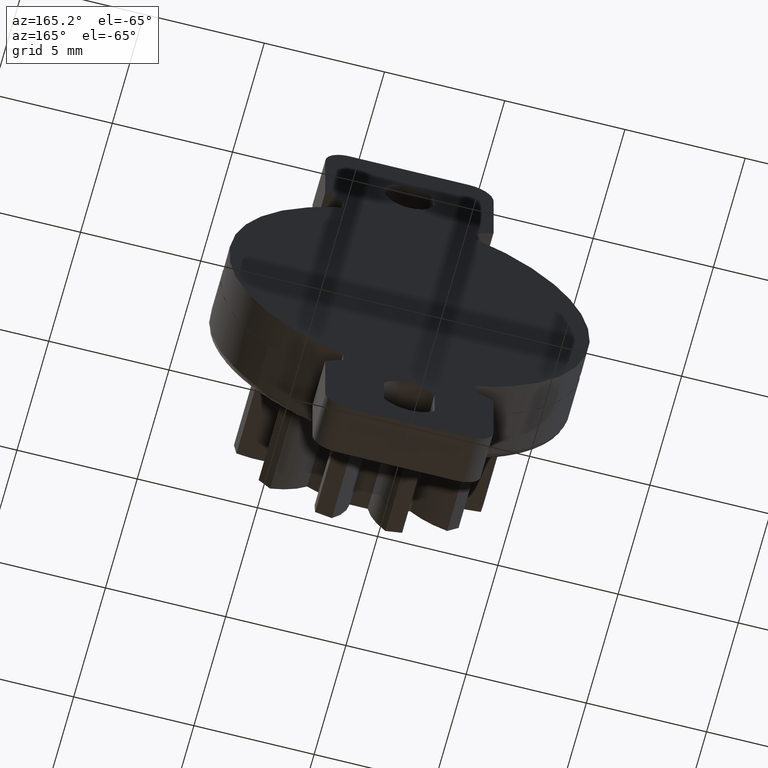
[diagram: clean part render]
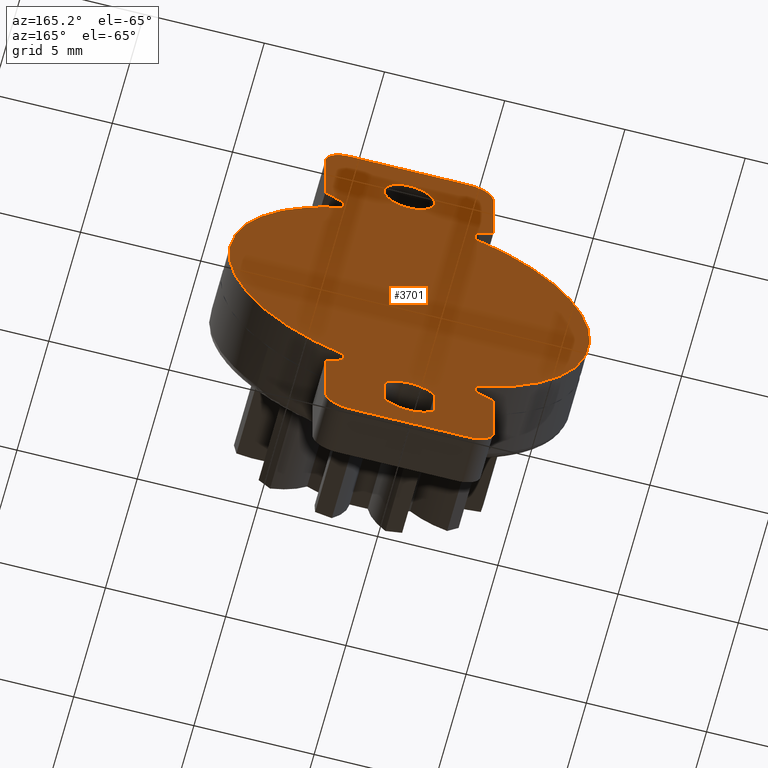
[diagram: same view with one face highlighted and labeled with its STEP entity id]
A machine part, auxiliary view. The second image highlights one B-rep face of the part: STEP entity #3701.
In plain terms, the highlighted face is a freeform B-spline surface patch.
Its self-contained STEP definition (entity closure, byte-faithful):
#2835=CARTESIAN_POINT('',(0.0,0.0,8.449999999999999));
#2836=VERTEX_POINT('',#2835);
#2837=CARTESIAN_POINT('',(1.046763200416690,1.040834E-016,9.417617949446449));
#2838=VERTEX_POINT('',#2837);
#2839=CARTESIAN_POINT('',(0.0,0.0,8.449999999999999));
#2840=CARTESIAN_POINT('',(0.970610016204549,0.0,8.449999999999998));
#2841=CARTESIAN_POINT('',(1.046763200416690,0.0,9.417617949446445));
#2849=(BOUNDED_CURVE()B_SPLINE_CURVE(2,(#2839,#2840,#2841),.UNSPECIFIED.,.F.,.U.)B_SPLINE_CURVE_WITH_KNOTS((3,3),(0.0,0.236331300626328),.UNSPECIFIED.)CURVE()GEOMETRIC_REPRESENTATION_ITEM()RATIONAL_B_SPLINE_CURVE((1.0,0.723120658612740,0.969723356158378))REPRESENTATION_ITEM(''));
#2850=EDGE_CURVE('',#2836,#2838,#2849,.T.);
#2852=CARTESIAN_POINT('',(-1.046763200416690,1.040834E-016,9.582382050553552));
#2853=VERTEX_POINT('',#2852);
#2854=CARTESIAN_POINT('',(-1.046763200416690,0.0,9.582382050553550));
#2855=CARTESIAN_POINT('',(-1.050000000000000,0.0,9.541254612377800));
#2856=CARTESIAN_POINT('',(-1.050000000000000,0.0,9.500000000000000));
#2857=CARTESIAN_POINT('',(-1.050000000000000,0.0,8.449999999999999));
#2858=CARTESIAN_POINT('',(0.0,0.0,8.449999999999999));
#2866=(BOUNDED_CURVE()B_SPLINE_CURVE(2,(#2854,#2855,#2856,#2857,#2858),.UNSPECIFIED.,.F.,.U.)B_SPLINE_CURVE_WITH_KNOTS((3,2,3),(0.736331300626329,0.750000000000000,1.0),.UNSPECIFIED.)CURVE()GEOMETRIC_REPRESENTATION_ITEM()RATIONAL_B_SPLINE_CURVE((0.969723356158379,0.983986122573808,1.0,0.707106781186548,1.0))REPRESENTATION_ITEM(''));
#2867=EDGE_CURVE('',#2853,#2836,#2866,.T.);
#2934=CARTESIAN_POINT('',(0.0,0.0,10.550000000000001));
#2935=VERTEX_POINT('',#2934);
#2936=CARTESIAN_POINT('',(1.046763200416690,0.0,9.417617949446447));
#2937=CARTESIAN_POINT('',(1.050000000000000,0.0,9.458745387622198));
#2938=CARTESIAN_POINT('',(1.050000000000000,0.0,9.500000000000000));
#2939=CARTESIAN_POINT('',(1.050000000000000,0.0,10.550000000000001));
#2940=CARTESIAN_POINT('',(0.0,0.0,10.550000000000001));
#2948=(BOUNDED_CURVE()B_SPLINE_CURVE(2,(#2936,#2937,#2938,#2939,#2940),.UNSPECIFIED.,.F.,.U.)B_SPLINE_CURVE_WITH_KNOTS((3,2,3),(0.236331300626329,0.250000000000000,0.500000000000000),.UNSPECIFIED.)CURVE()GEOMETRIC_REPRESENTATION_ITEM()RATIONAL_B_SPLINE_CURVE((0.969723356158380,0.983986122573808,1.0,0.707106781186548,1.0))REPRESENTATION_ITEM(''));
#2949=EDGE_CURVE('',#2838,#2935,#2948,.T.);
#2983=CARTESIAN_POINT('',(0.0,0.0,10.550000000000001));
#2984=CARTESIAN_POINT('',(-0.970610016204550,0.0,10.550000000000001));
#2985=CARTESIAN_POINT('',(-1.046763200416691,0.0,9.582382050553553));
#2993=(BOUNDED_CURVE()B_SPLINE_CURVE(2,(#2983,#2984,#2985),.UNSPECIFIED.,.F.,.U.)B_SPLINE_CURVE_WITH_KNOTS((3,3),(0.500000000000000,0.736331300626328),.UNSPECIFIED.)CURVE()GEOMETRIC_REPRESENTATION_ITEM()RATIONAL_B_SPLINE_CURVE((1.0,0.723120658612740,0.969723356158379))REPRESENTATION_ITEM(''));
#2994=EDGE_CURVE('',#2935,#2853,#2993,.T.);
#3013=CARTESIAN_POINT('',(1.050000000000000,0.0,-8.733514514162200));
#3014=VERTEX_POINT('',#3013);
#3015=CARTESIAN_POINT('',(-1.050000000000000,0.0,-8.733514514162200));
#3016=VERTEX_POINT('',#3015);
#3017=CARTESIAN_POINT('',(1.050000000000000,0.0,-8.733514514162200));
#3018=CARTESIAN_POINT('',(0.974973760878011,0.0,-8.630634736934189));
#3019=CARTESIAN_POINT('',(0.839489021658616,0.0,-8.493131299334886));
#3020=CARTESIAN_POINT('',(0.598105191322219,0.0,-8.337402728719692));
#3021=CARTESIAN_POINT('',(0.396637177789484,0.0,-8.254747692055863));
#3022=CARTESIAN_POINT('',(0.178378652067182,0.0,-8.207553867136358));
#3023=CARTESIAN_POINT('',(-0.031925948305156,0.0,-8.193619084119920));
#3024=CARTESIAN_POINT('',(-0.248038725039116,0.0,-8.217532610326114));
#3025=CARTESIAN_POINT('',(-0.468948261893953,0.0,-8.280845977842752));
#3026=CARTESIAN_POINT('',(-0.676455728084656,0.0,-8.380582471387505));
#3027=CARTESIAN_POINT('',(-0.881777347932787,0.0,-8.533167104078835));
#3028=CARTESIAN_POINT('',(-0.997462968323006,0.0,-8.661521470386898));
#3029=CARTESIAN_POINT('',(-1.050000000000000,0.0,-8.733514514162200));
#3030=B_SPLINE_CURVE_WITH_KNOTS('',3,(#3017,#3018,#3019,#3020,#3021,#3022,#3023,#3024,#3025,#3026,#3027,#3028,#3029),.UNSPECIFIED.,.F.,.U.,(4,1,1,1,1,1,1,1,1,1,4),(0.000000030890873,0.381968123910125,0.572955932402807,0.859439073963452,1.031329210012116,1.241399209092255,1.489679376440017,1.680668766872285,1.928953136653502,2.177241200002495,2.444613708669297),.UNSPECIFIED.);
#3031=EDGE_CURVE('',#3014,#3016,#3030,.T.);
#3070=CARTESIAN_POINT('',(-1.050000000000000,0.0,-10.266485485837800));
#3071=VERTEX_POINT('',#3070);
#3072=CARTESIAN_POINT('',(-1.050000000000000,0.0,-8.733514514162200));
#3073=CARTESIAN_POINT('',(-1.050000000000000,0.0,-10.266485485837800));
#3074=QUASI_UNIFORM_CURVE('',1,(#3072,#3073),.UNSPECIFIED.,.F.,.U.);
#3075=EDGE_CURVE('',#3016,#3071,#3074,.T.);
#3107=CARTESIAN_POINT('',(1.050000000000000,0.0,-10.266485485837800));
#3108=VERTEX_POINT('',#3107);
#3109=CARTESIAN_POINT('',(-1.050000000000000,0.0,-10.266485485837800));
#3110=CARTESIAN_POINT('',(-0.997457742880714,0.0,-10.338471728374980));
#3111=CARTESIAN_POINT('',(-0.856091780178287,0.0,-10.495391079361619));
#3112=CARTESIAN_POINT('',(-0.616540574933561,0.0,-10.657532774709580));
#3113=CARTESIAN_POINT('',(-0.377921248899983,0.0,-10.749282732176891));
#3114=CARTESIAN_POINT('',(-0.178379540101015,0.0,-10.792448184464931));
#3115=CARTESIAN_POINT('',(0.044673519221700,0.0,-10.807227349654850));
#3116=CARTESIAN_POINT('',(0.273446314474370,0.0,-10.778513707710790));
#3117=CARTESIAN_POINT('',(0.522811629485209,0.0,-10.699037717833120));
#3118=CARTESIAN_POINT('',(0.792928011774830,0.0,-10.551694634765820));
#3119=CARTESIAN_POINT('',(0.967477829333205,0.0,-10.379654523538290));
#3120=CARTESIAN_POINT('',(1.050000000000000,0.0,-10.266485485837800));
#3121=B_SPLINE_CURVE_WITH_KNOTS('',3,(#3109,#3110,#3111,#3112,#3113,#3114,#3115,#3116,#3117,#3118,#3119,#3120),.UNSPECIFIED.,.F.,.U.,(4,1,1,1,1,1,1,1,1,4),(0.000000030890480,0.267373712119434,0.630252422377909,0.859439073963286,1.031329210012017,1.241399209092223,1.527879765149542,1.718867411859083,2.024445984026377,2.444613708669287),.UNSPECIFIED.);
#3122=EDGE_CURVE('',#3071,#3108,#3121,.T.);
#3156=CARTESIAN_POINT('',(1.050000000000000,0.0,-10.266485485837800));
#3157=CARTESIAN_POINT('',(1.050000000000000,0.0,-8.733514514162200));
#3158=QUASI_UNIFORM_CURVE('',1,(#3156,#3157),.UNSPECIFIED.,.F.,.U.);
#3159=EDGE_CURVE('',#3108,#3014,#3158,.T.);
#3176=CARTESIAN_POINT('',(-3.500000000000000,0.0,8.0));
#3177=VERTEX_POINT('',#3176);
#3178=CARTESIAN_POINT('',(-3.500000000000000,0.0,11.0));
#3179=VERTEX_POINT('',#3178);
#3180=CARTESIAN_POINT('',(-3.500000000000000,0.0,8.0));
#3181=CARTESIAN_POINT('',(-3.500000000000000,0.0,11.0));
#3182=QUASI_UNIFORM_CURVE('',1,(#3180,#3181),.UNSPECIFIED.,.F.,.U.);
#3183=EDGE_CURVE('',#3177,#3179,#3182,.T.);
#3221=CARTESIAN_POINT('',(-2.500000000000000,0.0,12.0));
#3222=VERTEX_POINT('',#3221);
#3223=CARTESIAN_POINT('',(-2.500000000000000,0.0,12.0));
#3224=CARTESIAN_POINT('',(-3.499999999999999,0.0,12.0));
#3225=CARTESIAN_POINT('',(-3.500000000000000,0.0,11.0));
#3233=(BOUNDED_CURVE()B_SPLINE_CURVE(2,(#3223,#3224,#3225),.UNSPECIFIED.,.F.,.U.)CURVE()GEOMETRIC_REPRESENTATION_ITEM()QUASI_UNIFORM_CURVE()RATIONAL_B_SPLINE_CURVE((1.0,0.707106781186548,1.0))REPRESENTATION_ITEM(''));
#3234=EDGE_CURVE('',#3222,#3179,#3233,.T.);
#3265=CARTESIAN_POINT('',(2.500000000000000,0.0,12.0));
#3266=VERTEX_POINT('',#3265);
#3267=CARTESIAN_POINT('',(-2.500000000000000,0.0,12.0));
#3268=CARTESIAN_POINT('',(2.500000000000000,0.0,12.0));
#3269=QUASI_UNIFORM_CURVE('',1,(#3267,#3268),.UNSPECIFIED.,.F.,.U.);
#3270=EDGE_CURVE('',#3222,#3266,#3269,.T.);
#3302=CARTESIAN_POINT('',(3.500000000000000,0.0,11.0));
#3303=VERTEX_POINT('',#3302);
#3304=CARTESIAN_POINT('',(3.500000000000000,0.0,11.0));
#3305=CARTESIAN_POINT('',(3.499999999999999,0.0,12.0));
#3306=CARTESIAN_POINT('',(2.500000000000000,0.0,12.0));
#3314=(BOUNDED_CURVE()B_SPLINE_CURVE(2,(#3304,#3305,#3306),.UNSPECIFIED.,.F.,.U.)CURVE()GEOMETRIC_REPRESENTATION_ITEM()QUASI_UNIFORM_CURVE()RATIONAL_B_SPLINE_CURVE((1.0,0.707106781186548,1.0))REPRESENTATION_ITEM(''));
#3315=EDGE_CURVE('',#3303,#3266,#3314,.T.);
#3346=CARTESIAN_POINT('',(3.500000000000000,0.0,8.0));
#3347=VERTEX_POINT('',#3346);
#3348=CARTESIAN_POINT('',(3.500000000000000,0.0,11.0));
#3349=CARTESIAN_POINT('',(3.500000000000000,0.0,8.0));
#3350=QUASI_UNIFORM_CURVE('',1,(#3348,#3349),.UNSPECIFIED.,.F.,.U.);
#3351=EDGE_CURVE('',#3303,#3347,#3350,.T.);
#3374=CARTESIAN_POINT('',(3.500000000000000,0.0,-11.0));
#3375=VERTEX_POINT('',#3374);
#3376=CARTESIAN_POINT('',(3.500000000000000,0.0,-8.0));
#3377=VERTEX_POINT('',#3376);
#3378=CARTESIAN_POINT('',(3.500000000000000,0.0,-11.0));
#3379=CARTESIAN_POINT('',(3.500000000000000,0.0,-8.0));
#3380=QUASI_UNIFORM_CURVE('',1,(#3378,#3379),.UNSPECIFIED.,.F.,.U.);
#3381=EDGE_CURVE('',#3375,#3377,#3380,.T.);
#3419=CARTESIAN_POINT('',(2.500000000000000,0.0,-12.0));
#3420=VERTEX_POINT('',#3419);
#3421=CARTESIAN_POINT('',(2.500000000000000,0.0,-12.0));
#3422=CARTESIAN_POINT('',(3.499999999999999,0.0,-12.0));
#3423=CARTESIAN_POINT('',(3.500000000000000,0.0,-11.0));
#3431=(BOUNDED_CURVE()B_SPLINE_CURVE(2,(#3421,#3422,#3423),.UNSPECIFIED.,.F.,.U.)CURVE()GEOMETRIC_REPRESENTATION_ITEM()QUASI_UNIFORM_CURVE()RATIONAL_B_SPLINE_CURVE((1.0,0.707106781186548,1.0))REPRESENTATION_ITEM(''));
#3432=EDGE_CURVE('',#3420,#3375,#3431,.T.);
#3463=CARTESIAN_POINT('',(-2.500000000000000,0.0,-12.0));
#3464=VERTEX_POINT('',#3463);
#3465=CARTESIAN_POINT('',(-2.500000000000000,0.0,-12.0));
#3466=CARTESIAN_POINT('',(2.500000000000000,0.0,-12.0));
#3467=QUASI_UNIFORM_CURVE('',1,(#3465,#3466),.UNSPECIFIED.,.F.,.U.);
#3468=EDGE_CURVE('',#3464,#3420,#3467,.T.);
#3500=CARTESIAN_POINT('',(-3.500000000000000,0.0,-11.0));
#3501=VERTEX_POINT('',#3500);
#3502=CARTESIAN_POINT('',(-3.500000000000000,0.0,-11.0));
#3503=CARTESIAN_POINT('',(-3.499999999999999,0.0,-12.0));
#3504=CARTESIAN_POINT('',(-2.500000000000000,0.0,-12.0));
#3512=(BOUNDED_CURVE()B_SPLINE_CURVE(2,(#3502,#3503,#3504),.UNSPECIFIED.,.F.,.U.)CURVE()GEOMETRIC_REPRESENTATION_ITEM()QUASI_UNIFORM_CURVE()RATIONAL_B_SPLINE_CURVE((1.0,0.707106781186548,1.0))REPRESENTATION_ITEM(''));
#3513=EDGE_CURVE('',#3501,#3464,#3512,.T.);
#3544=CARTESIAN_POINT('',(-3.500000000000000,0.0,-8.0));
#3545=VERTEX_POINT('',#3544);
#3546=CARTESIAN_POINT('',(-3.500000000000000,0.0,-8.0));
#3547=CARTESIAN_POINT('',(-3.500000000000000,0.0,-11.0));
#3548=QUASI_UNIFORM_CURVE('',1,(#3546,#3547),.UNSPECIFIED.,.F.,.U.);
#3549=EDGE_CURVE('',#3545,#3501,#3548,.T.);
#3567=CARTESIAN_POINT('',(-8.249249970927089,0.0,-13.198799953483350));
#3568=CARTESIAN_POINT('',(8.249250373258443,0.0,-13.198799953483350));
#3569=CARTESIAN_POINT('',(-8.249249970927089,0.0,13.198800597213509));
#3570=CARTESIAN_POINT('',(8.249250373258443,0.0,13.198800597213509));
#3571=B_SPLINE_SURFACE_WITH_KNOTS('',1,1,((#3567,#3569),(#3568,#3570)),.UNSPECIFIED.,.F.,.F.,.U.,(2,2),(2,2),(0.0,16.498500344185530),(0.0,26.397600550696851),.UNSPECIFIED.);
#3572=CARTESIAN_POINT('',(-2.750000000000000,0.0,6.977642868476430));
#3573=VERTEX_POINT('',#3572);
#3574=CARTESIAN_POINT('',(-2.750000000000000,0.0,-6.977642868476430));
#3575=VERTEX_POINT('',#3574);
#3576=CARTESIAN_POINT('',(-2.750000000000000,0.0,6.977642868476430));
#3577=CARTESIAN_POINT('',(-3.086682025978337,0.0,6.844970874117615));
#3578=CARTESIAN_POINT('',(-3.582522653245725,0.0,6.606761246216620));
#3579=CARTESIAN_POINT('',(-4.296236635317846,0.0,6.161753059004457));
#3580=CARTESIAN_POINT('',(-4.890536066434009,0.0,5.706907583476005));
#3581=CARTESIAN_POINT('',(-5.446955649694584,0.0,5.172387301706844));
#3582=CARTESIAN_POINT('',(-5.941846180619490,0.0,4.596320966823802));
#3583=CARTESIAN_POINT('',(-6.485738611625177,0.0,3.821022966260096));
#3584=CARTESIAN_POINT('',(-6.984704249582792,0.0,2.825473978249185));
#3585=CARTESIAN_POINT('',(-7.329325026413267,0.0,1.706723541538354));
#3586=CARTESIAN_POINT('',(-7.489719588763409,0.0,0.689667188116554));
#3587=CARTESIAN_POINT('',(-7.516769961528138,0.0,-0.362696766478908));
#3588=CARTESIAN_POINT('',(-7.411746656760244,0.0,-1.258250913345645));
#3589=CARTESIAN_POINT('',(-7.214432757934902,0.0,-2.087879604064331));
#3590=CARTESIAN_POINT('',(-6.953520177027715,0.0,-2.863500598909426));
#3591=CARTESIAN_POINT('',(-6.561032495673210,0.0,-3.674765363883549));
#3592=CARTESIAN_POINT('',(-6.051098432041781,0.0,-4.458750859032165));
#3593=CARTESIAN_POINT('',(-5.469685179934102,0.0,-5.161675596491676));
#3594=CARTESIAN_POINT('',(-4.836941568730457,0.0,-5.752683556408615));
#3595=CARTESIAN_POINT('',(-3.946055369336286,0.0,-6.414960976382835));
#3596=CARTESIAN_POINT('',(-3.260494319309568,0.0,-6.776569213581414));
#3597=CARTESIAN_POINT('',(-2.750000000000000,0.0,-6.977642868476430));
#3598=B_SPLINE_CURVE_WITH_KNOTS('',3,(#3576,#3577,#3578,#3579,#3580,#3581,#3582,#3583,#3584,#3585,#3586,#3587,#3588,#3589,#3590,#3591,#3592,#3593,#3594,#3595,#3596,#3597),.UNSPECIFIED.,.F.,.U.,(4,1,1,1,1,1,1,1,1,1,1,1,1,1,1,1,1,1,1,4),(0.000000023477831,1.085634696486636,1.645972464827146,2.521485385591165,3.326964316076792,3.957339483686498,4.797838700052106,6.163648191348258,7.284313169496535,8.299922742949834,9.245459062401684,10.436172656125990,10.996503231740620,11.801980053099580,12.887623828195951,13.693100530174050,14.603641417802960,15.619246376122760,16.284643092806451,17.930607071667801),.UNSPECIFIED.);
#3599=EDGE_CURVE('',#3573,#3575,#3598,.T.);
#3600=ORIENTED_EDGE('',*,*,#3599,.F.);
#3601=CARTESIAN_POINT('',(-2.750000000000000,0.0,7.512489600658401));
#3602=VERTEX_POINT('',#3601);
#3603=CARTESIAN_POINT('',(-2.750000000000000,0.0,7.512489600658401));
#3604=CARTESIAN_POINT('',(-2.750000000000000,0.0,6.977642868476430));
#3605=QUASI_UNIFORM_CURVE('',1,(#3603,#3604),.UNSPECIFIED.,.F.,.U.);
#3606=EDGE_CURVE('',#3602,#3573,#3605,.T.);
#3607=ORIENTED_EDGE('',*,*,#3606,.F.);
#3608=CARTESIAN_POINT('',(-2.750000000000000,0.0,7.512489600658401));
#3609=CARTESIAN_POINT('',(-3.500000000000000,0.0,8.0));
#3610=QUASI_UNIFORM_CURVE('',1,(#3608,#3609),.UNSPECIFIED.,.F.,.U.);
#3611=EDGE_CURVE('',#3602,#3177,#3610,.T.);
#3612=ORIENTED_EDGE('',*,*,#3611,.T.);
#3613=ORIENTED_EDGE('',*,*,#3183,.T.);
#3614=ORIENTED_EDGE('',*,*,#3234,.F.);
#3615=ORIENTED_EDGE('',*,*,#3270,.T.);
#3616=ORIENTED_EDGE('',*,*,#3315,.F.);
#3617=ORIENTED_EDGE('',*,*,#3351,.T.);
#3618=CARTESIAN_POINT('',(2.750000000000000,0.0,7.512489600658401));
#3619=VERTEX_POINT('',#3618);
#3620=CARTESIAN_POINT('',(3.500000000000000,0.0,8.0));
#3621=CARTESIAN_POINT('',(2.750000000000000,0.0,7.512489600658401));
#3622=QUASI_UNIFORM_CURVE('',1,(#3620,#3621),.UNSPECIFIED.,.F.,.U.);
#3623=EDGE_CURVE('',#3347,#3619,#3622,.T.);
#3624=ORIENTED_EDGE('',*,*,#3623,.T.);
#3625=CARTESIAN_POINT('',(2.750000000000000,0.0,6.977642868476430));
#3626=VERTEX_POINT('',#3625);
#3627=CARTESIAN_POINT('',(2.750000000000000,0.0,6.977642868476430));
#3628=CARTESIAN_POINT('',(2.750000000000000,0.0,7.512489600658401));
#3629=QUASI_UNIFORM_CURVE('',1,(#3627,#3628),.UNSPECIFIED.,.F.,.U.);
#3630=EDGE_CURVE('',#3626,#3619,#3629,.T.);
#3631=ORIENTED_EDGE('',*,*,#3630,.F.);
#3632=CARTESIAN_POINT('',(2.750000000000000,0.0,-6.977642868476430));
#3633=VERTEX_POINT('',#3632);
#3634=CARTESIAN_POINT('',(2.750000000000000,0.0,-6.977642868476430));
#3635=CARTESIAN_POINT('',(3.032375384608039,0.0,-6.866362663673438));
#3636=CARTESIAN_POINT('',(3.572986142951947,0.0,-6.614395426494071));
#3637=CARTESIAN_POINT('',(4.348080979774671,0.0,-6.133628671478509));
#3638=CARTESIAN_POINT('',(4.986482711515285,0.0,-5.620953506118354));
#3639=CARTESIAN_POINT('',(5.608430694494055,0.0,-5.003639543158696));
#3640=CARTESIAN_POINT('',(6.136301588469042,0.0,-4.346939147499172));
#3641=CARTESIAN_POINT('',(6.607618930131668,0.0,-3.579891726763414));
#3642=CARTESIAN_POINT('',(7.002058033091183,0.0,-2.744816294804095));
#3643=CARTESIAN_POINT('',(7.283077538266904,0.0,-1.876054921423341));
#3644=CARTESIAN_POINT('',(7.480339679071055,0.0,-0.818777704188180));
#3645=CARTESIAN_POINT('',(7.526586831864337,0.0,0.223014367369445));
#3646=CARTESIAN_POINT('',(7.399720858215196,0.0,1.374381592299869));
#3647=CARTESIAN_POINT('',(7.110887022392135,0.0,2.484845258672948));
#3648=CARTESIAN_POINT('',(6.685222776968013,0.0,3.449438824790560));
#3649=CARTESIAN_POINT('',(6.215831769207423,0.0,4.217279267223612));
#3650=CARTESIAN_POINT('',(5.703384783318891,0.0,4.899321815244294));
#3651=CARTESIAN_POINT('',(4.989408651059724,0.0,5.641908211547292));
#3652=CARTESIAN_POINT('',(3.979326307628087,0.0,6.403803247875802));
#3653=CARTESIAN_POINT('',(3.184441724523167,0.0,6.806474695825192));
#3654=CARTESIAN_POINT('',(2.750000000000000,0.0,6.977642868476430));
#3655=B_SPLINE_CURVE_WITH_KNOTS('',3,(#3634,#3635,#3636,#3637,#3638,#3639,#3640,#3641,#3642,#3643,#3644,#3645,#3646,#3647,#3648,#3649,#3650,#3651,#3652,#3653,#3654),.UNSPECIFIED.,.F.,.U.,(4,1,1,1,1,1,1,1,1,1,1,1,1,1,1,1,1,1,4),(0.000000023475170,0.910533943081422,1.786046776759235,2.731615615395489,3.361988840868520,4.412610453573034,5.253108318849991,6.058586147389951,7.179247546817761,7.984734483649094,9.280485081845985,10.296079792224790,11.451773090828249,12.712519713024641,13.447955416497440,14.148370728037049,15.269039408784570,16.529779837955829,17.930607071667790),.UNSPECIFIED.);
#3656=EDGE_CURVE('',#3633,#3626,#3655,.T.);
#3657=ORIENTED_EDGE('',*,*,#3656,.F.);
#3658=CARTESIAN_POINT('',(2.750000000000000,0.0,-7.512489600658401));
#3659=VERTEX_POINT('',#3658);
#3660=CARTESIAN_POINT('',(2.750000000000000,0.0,-6.977642868476430));
#3661=CARTESIAN_POINT('',(2.750000000000000,0.0,-7.512489600658401));
#3662=QUASI_UNIFORM_CURVE('',1,(#3660,#3661),.UNSPECIFIED.,.F.,.U.);
#3663=EDGE_CURVE('',#3633,#3659,#3662,.T.);
#3664=ORIENTED_EDGE('',*,*,#3663,.T.);
#3665=CARTESIAN_POINT('',(3.500000000000000,0.0,-8.0));
#3666=CARTESIAN_POINT('',(2.750000000000000,0.0,-7.512489600658401));
#3667=QUASI_UNIFORM_CURVE('',1,(#3665,#3666),.UNSPECIFIED.,.F.,.U.);
#3668=EDGE_CURVE('',#3377,#3659,#3667,.T.);
#3669=ORIENTED_EDGE('',*,*,#3668,.F.);
#3670=ORIENTED_EDGE('',*,*,#3381,.F.);
#3671=ORIENTED_EDGE('',*,*,#3432,.F.);
#3672=ORIENTED_EDGE('',*,*,#3468,.F.);
#3673=ORIENTED_EDGE('',*,*,#3513,.F.);
#3674=ORIENTED_EDGE('',*,*,#3549,.F.);
#3675=CARTESIAN_POINT('',(-2.750000000000000,0.0,-7.512489600658401));
#3676=VERTEX_POINT('',#3675);
#3677=CARTESIAN_POINT('',(-2.750000000000000,0.0,-7.512489600658401));
#3678=CARTESIAN_POINT('',(-3.500000000000000,0.0,-8.0));
#3679=QUASI_UNIFORM_CURVE('',1,(#3677,#3678),.UNSPECIFIED.,.F.,.U.);
#3680=EDGE_CURVE('',#3676,#3545,#3679,.T.);
#3681=ORIENTED_EDGE('',*,*,#3680,.F.);
#3682=CARTESIAN_POINT('',(-2.750000000000000,0.0,-7.512489600658401));
#3683=CARTESIAN_POINT('',(-2.750000000000000,0.0,-6.977642868476430));
#3684=QUASI_UNIFORM_CURVE('',1,(#3682,#3683),.UNSPECIFIED.,.F.,.U.);
#3685=EDGE_CURVE('',#3676,#3575,#3684,.T.);
#3686=ORIENTED_EDGE('',*,*,#3685,.T.);
#3687=EDGE_LOOP('',(#3600,#3607,#3612,#3613,#3614,#3615,#3616,#3617,#3624,#3631,#3657,#3664,#3669,#3670,#3671,#3672,#3673,#3674,#3681,#3686));
#3688=FACE_OUTER_BOUND('',#3687,.T.);
#3689=ORIENTED_EDGE('',*,*,#3159,.T.);
#3690=ORIENTED_EDGE('',*,*,#3031,.T.);
#3691=ORIENTED_EDGE('',*,*,#3075,.T.);
#3692=ORIENTED_EDGE('',*,*,#3122,.T.);
#3693=EDGE_LOOP('',(#3689,#3690,#3691,#3692));
#3694=FACE_BOUND('',#3693,.T.);
#3695=ORIENTED_EDGE('',*,*,#2994,.T.);
#3696=ORIENTED_EDGE('',*,*,#2867,.T.);
#3697=ORIENTED_EDGE('',*,*,#2850,.T.);
#3698=ORIENTED_EDGE('',*,*,#2949,.T.);
#3699=EDGE_LOOP('',(#3695,#3696,#3697,#3698));
#3700=FACE_BOUND('',#3699,.T.);
#3701=ADVANCED_FACE('',(#3688,#3694,#3700),#3571,.F.);